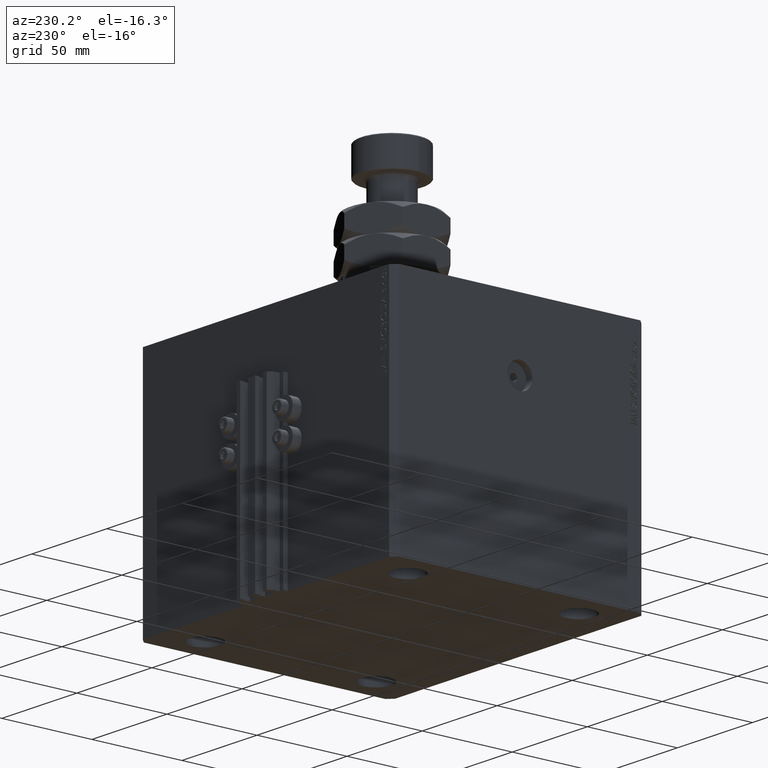
[diagram: clean part render]
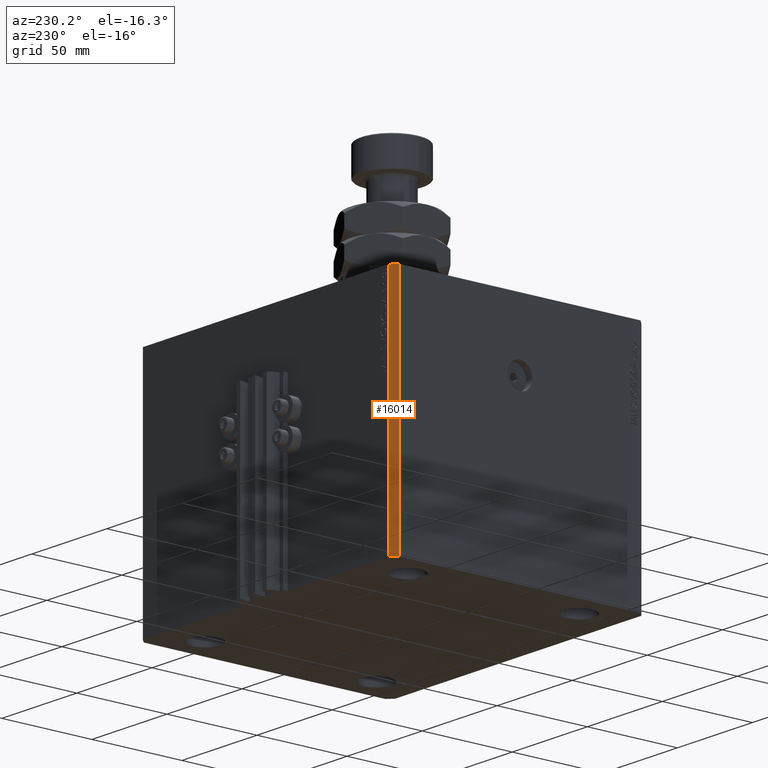
[diagram: same view with one face highlighted and labeled with its STEP entity id]
A machine part, auxiliary view. The second image highlights one B-rep face of the part: STEP entity #16014.
In plain terms, the highlighted planar face has unit normal (-0.7071, 0.7071, 0).
Its self-contained STEP definition (entity closure, byte-faithful):
#1077 = DIRECTION ( 'NONE',  ( -0.7071067811865442421, 0.7071067811865507924, 0.000000000000000000 ) ) ;
#5434 = CARTESIAN_POINT ( 'NONE',  ( -82.00000000000000000, 70.00000000000000000, 0.000000000000000000 ) ) ;
#5546 = ORIENTED_EDGE ( 'NONE', *, *, #43328, .T. ) ;
#8524 = CARTESIAN_POINT ( 'NONE',  ( -82.00000000000000000, 70.00000000000000000, -130.0000000000000000 ) ) ;
#9238 = EDGE_LOOP ( 'NONE', ( #14396, #25901, #21069, #5546 ) ) ;
#11579 = DIRECTION ( 'NONE',  ( 0.000000000000000000, 0.000000000000000000, 1.000000000000000000 ) ) ;
#14396 = ORIENTED_EDGE ( 'NONE', *, *, #20469, .F. ) ;
#15946 = PLANE ( 'NONE',  #28270 ) ;
#16014 = ADVANCED_FACE ( 'NONE', ( #27344 ), #15946, .T. ) ;
#16811 = DIRECTION ( 'NONE',  ( -0.7071067811865507924, -0.7071067811865441310, 0.000000000000000000 ) ) ;
#17207 = CARTESIAN_POINT ( 'NONE',  ( -82.00000000000000000, 70.00000000000000000, 0.000000000000000000 ) ) ;
#17905 = DIRECTION ( 'NONE',  ( 0.000000000000000000, 0.000000000000000000, 1.000000000000000000 ) ) ;
#18206 = LINE ( 'NONE', #40529, #27470 ) ;
#18761 = VECTOR ( 'NONE', #16811, 1000.000000000000114 ) ;
#20296 = VERTEX_POINT ( 'NONE', #23740 ) ;
#20469 = EDGE_CURVE ( 'NONE', #35937, #20296, #39365, .T. ) ;
#20725 = EDGE_CURVE ( 'NONE', #34454, #45949, #18206, .T. ) ;
#21069 = ORIENTED_EDGE ( 'NONE', *, *, #20725, .T. ) ;
#23740 = CARTESIAN_POINT ( 'NONE',  ( -85.00000000000001421, 67.00000000000001421, 0.000000000000000000 ) ) ;
#25353 = CARTESIAN_POINT ( 'NONE',  ( -85.00000000000001421, 67.00000000000001421, -130.0000000000000000 ) ) ;
#25901 = ORIENTED_EDGE ( 'NONE', *, *, #35845, .F. ) ;
#26850 = DIRECTION ( 'NONE',  ( -0.7071067811865507924, -0.7071067811865442421, 0.000000000000000000 ) ) ;
#27344 = FACE_OUTER_BOUND ( 'NONE', #9238, .T. ) ;
#27470 = VECTOR ( 'NONE', #29379, 1000.000000000000114 ) ;
#28270 = AXIS2_PLACEMENT_3D ( 'NONE', #8524, #1077, #26850 ) ;
#29379 = DIRECTION ( 'NONE',  ( -0.7071067811865507924, -0.7071067811865441310, 0.000000000000000000 ) ) ;
#30185 = CARTESIAN_POINT ( 'NONE',  ( -85.00000000000001421, 67.00000000000001421, -130.0000000000000000 ) ) ;
#34454 = VERTEX_POINT ( 'NONE', #36911 ) ;
#35845 = EDGE_CURVE ( 'NONE', #34454, #35937, #41334, .T. ) ;
#35937 = VERTEX_POINT ( 'NONE', #17207 ) ;
#36058 = VECTOR ( 'NONE', #17905, 1000.000000000000000 ) ;
#36911 = CARTESIAN_POINT ( 'NONE',  ( -82.00000000000000000, 70.00000000000000000, -130.0000000000000000 ) ) ;
#36982 = LINE ( 'NONE', #25353, #36058 ) ;
#38097 = CARTESIAN_POINT ( 'NONE',  ( -82.00000000000000000, 70.00000000000000000, -130.0000000000000000 ) ) ;
#39365 = LINE ( 'NONE', #5434, #18761 ) ;
#40529 = CARTESIAN_POINT ( 'NONE',  ( -82.00000000000000000, 70.00000000000000000, -130.0000000000000000 ) ) ;
#41334 = LINE ( 'NONE', #38097, #44225 ) ;
#43328 = EDGE_CURVE ( 'NONE', #45949, #20296, #36982, .T. ) ;
#44225 = VECTOR ( 'NONE', #11579, 1000.000000000000000 ) ;
#45949 = VERTEX_POINT ( 'NONE', #30185 ) ;